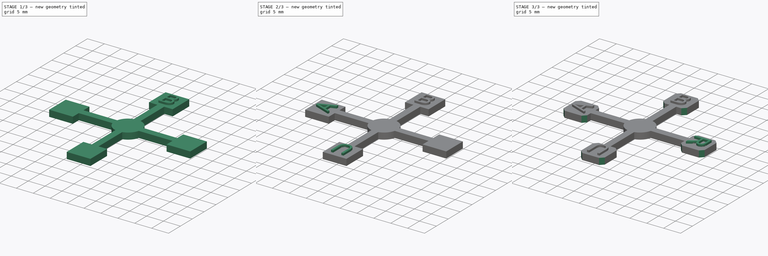
[diagram: build sequence overview — one tinted view per stage of 3, left to right]
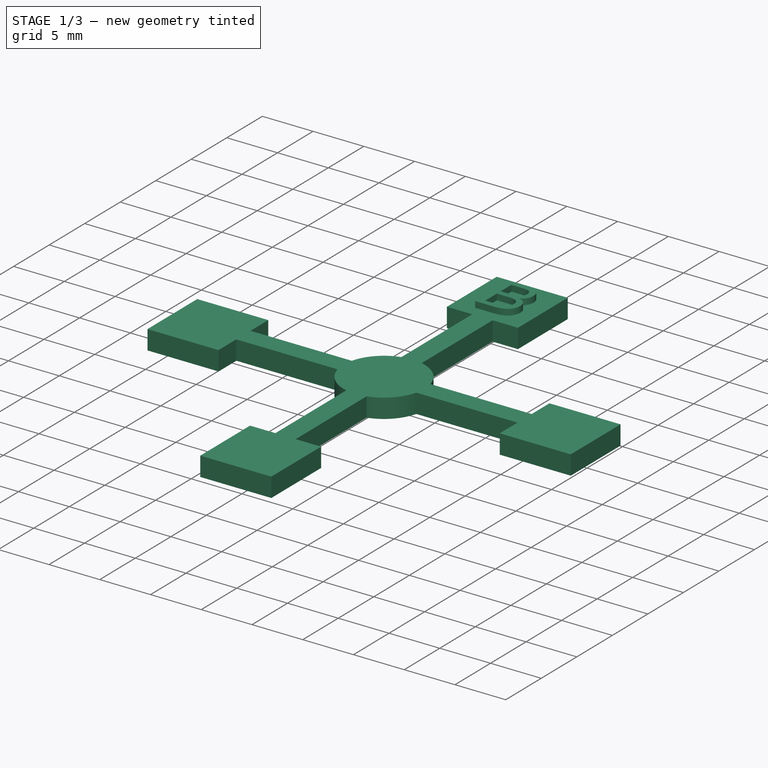
[diagram: stage 1 of 3 — iso view after this stage's code; geometry added in this stage tinted green]
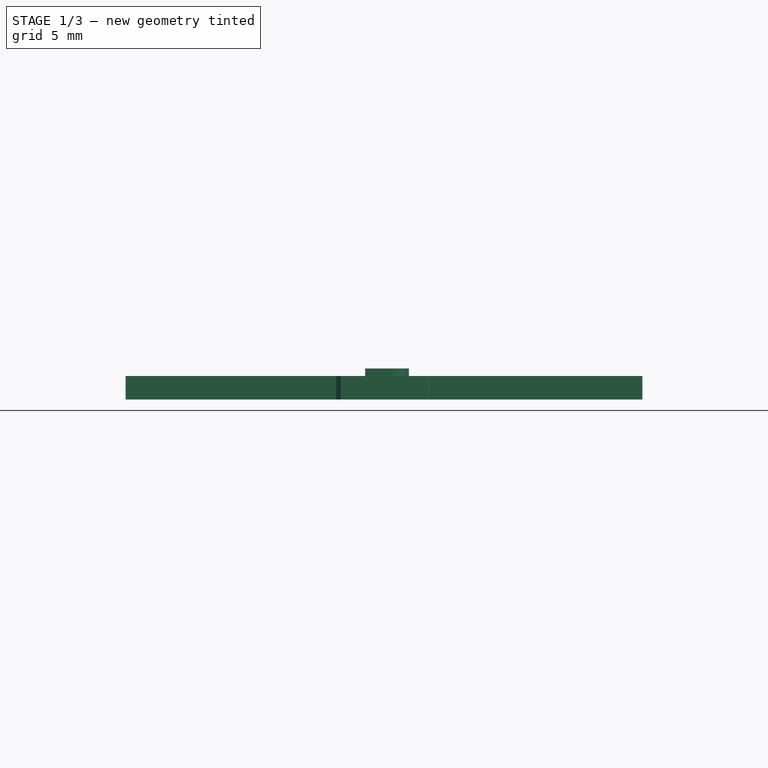
[diagram: stage 1 of 3 — front view after this stage's code; geometry added in this stage tinted green]
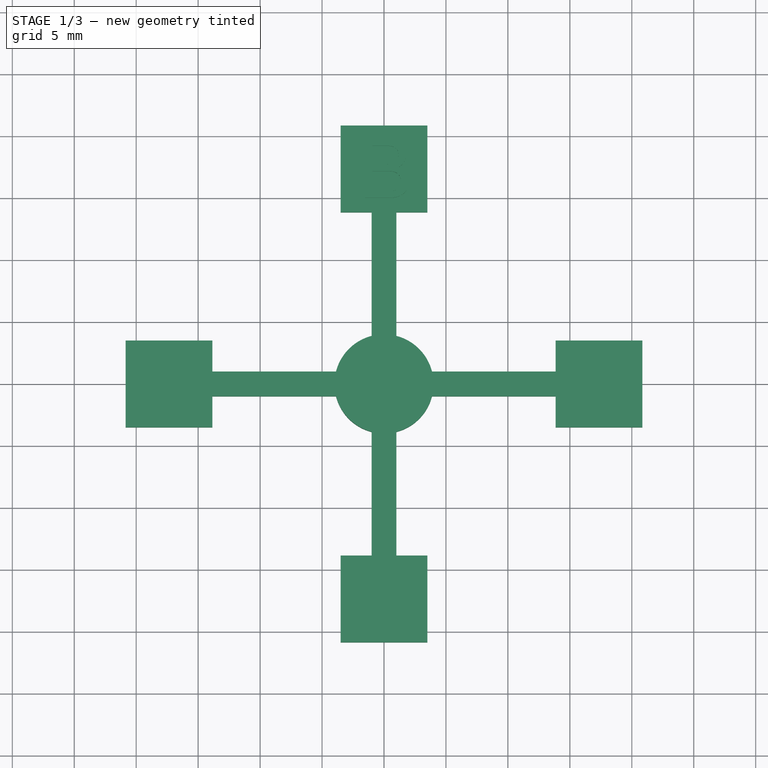
[diagram: stage 1 of 3 — top view after this stage's code; geometry added in this stage tinted green]
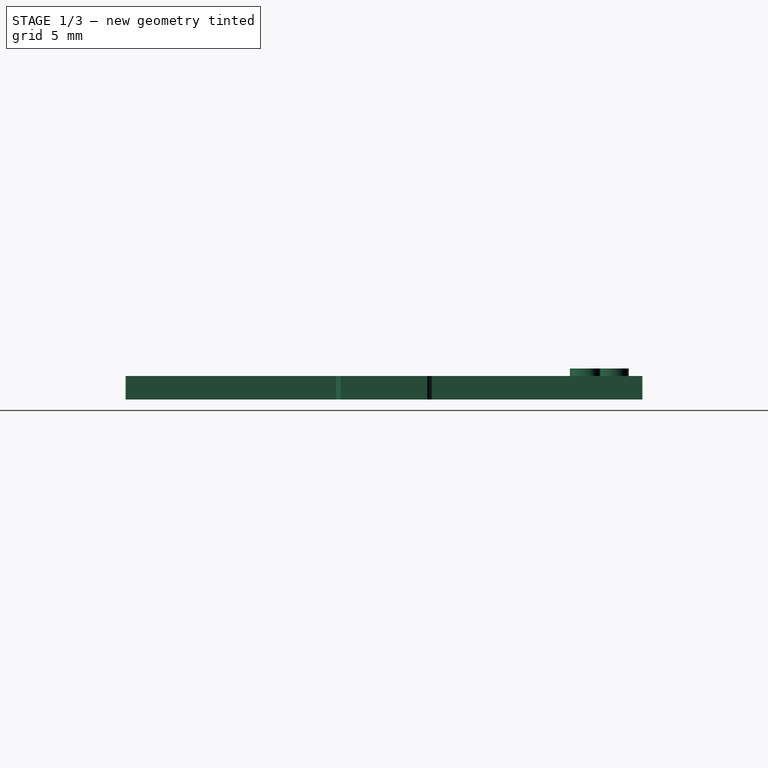
[diagram: stage 1 of 3 — right view after this stage's code; geometry added in this stage tinted green]
FCSTD DOCUMENT  (FreeCAD 0.19R24291 (Git))
Label: Baur
License: All rights reserved
LicenseURL: http://en.wikipedia.org/wiki/All_rights_reserved
objects: Sketcher::SketchObject×5, PartDesign::Pad×5, Part::Part2DObjectPython×4, PartDesign::Plane×1, PartDesign::Chamfer×1, PartDesign::Body×1
note: 23 computed .brp shape members not serialized (recipe doc carries the construction recipe); baked Part::Feature solids carry a one-line shape summary decoded from their .brp

FEATURE [Sketcher::SketchObject] Sketch
  FullyConstrained = true
  MapMode = 5
  Support = -> [XY_Plane]
  sketch-geometry (38):
    g0: LineSegment StartX=-1 StartY=13.853 StartZ=0 EndX=-1 EndY=3.87298 EndZ=0
    g1: LineSegment StartX=1 StartY=3.87298 StartZ=0 EndX=1 EndY=13.853 EndZ=0
    g2: LineSegment StartX=13.853 StartY=1 StartZ=0 EndX=3.87298 EndY=1 EndZ=0
    g3: LineSegment StartX=13.853 StartY=-1 StartZ=0 EndX=3.87298 EndY=-1 EndZ=0
    g4: LineSegment StartX=1 StartY=-13.853 StartZ=0 EndX=1 EndY=-3.87298 EndZ=0
    g5: LineSegment StartX=-1 StartY=-13.853 StartZ=0 EndX=-1 EndY=-3.87298 EndZ=0
    g6: LineSegment StartX=-13.853 StartY=1 StartZ=0 EndX=-3.87298 EndY=1 EndZ=0
    g7: LineSegment StartX=-13.853 StartY=-1 StartZ=0 EndX=-3.87298 EndY=-1 EndZ=0
    g8: ArcOfCircle CenterX=0 CenterY=0 CenterZ=0 NormalX=0 NormalY=0 NormalZ=1 AngleXU=0 Radius=4 StartAngle=3.39427 EndAngle=4.45971
    g9: ArcOfCircle CenterX=0 CenterY=0 CenterZ=0 NormalX=0 NormalY=0 NormalZ=1 AngleXU=0 Radius=4 StartAngle=4.96507 EndAngle=6.03051
    g10: ArcOfCircle CenterX=0 CenterY=0 CenterZ=0 NormalX=0 NormalY=0 NormalZ=1 AngleXU=0 Radius=4 StartAngle=0.25268 EndAngle=1.31812
    g11: ArcOfCircle CenterX=0 CenterY=0 CenterZ=0 NormalX=0 NormalY=0 NormalZ=1 AngleXU=0 Radius=4 StartAngle=1.82348 EndAngle=2.88891
    g12: GeomPoint X=3.5 Y=20.853 Z=0
    g13: GeomPoint X=-3.5 Y=20.853 Z=0
    g14: LineSegment StartX=-3.5 StartY=20.853 StartZ=0 EndX=-3.5 EndY=13.853 EndZ=0
    g15: LineSegment StartX=-3.5 StartY=13.853 StartZ=0 EndX=-1 EndY=13.853 EndZ=0
    g16: LineSegment StartX=3.5 StartY=13.853 StartZ=0 EndX=1 EndY=13.853 EndZ=0
    g17: LineSegment StartX=3.5 StartY=13.853 StartZ=0 EndX=3.5 EndY=20.853 EndZ=0
    g18: LineSegment StartX=-3.5 StartY=20.853 StartZ=0 EndX=3.5 EndY=20.853 EndZ=0
    g19: LineSegment StartX=13.853 StartY=3.5 StartZ=0 EndX=20.853 EndY=3.5 EndZ=0
    g20: LineSegment StartX=20.853 StartY=3.5 StartZ=0 EndX=20.853 EndY=-3.5 EndZ=0
    g21: LineSegment StartX=20.853 StartY=-3.5 StartZ=0 EndX=13.853 EndY=-3.5 EndZ=0
    g22: LineSegment StartX=13.853 StartY=-3.5 StartZ=0 EndX=13.853 EndY=-1 EndZ=0
    g23: LineSegment StartX=3.5 StartY=-13.853 StartZ=0 EndX=1 EndY=-13.853 EndZ=0
    g24: LineSegment StartX=-3.5 StartY=-13.853 StartZ=0 EndX=-3.5 EndY=-20.853 EndZ=0
    g25: LineSegment StartX=-3.5 StartY=-20.853 StartZ=0 EndX=3.5 EndY=-20.853 EndZ=0
    g26: LineSegment StartX=3.5 StartY=-20.853 StartZ=0 EndX=3.5 EndY=-13.853 EndZ=0
    g27: LineSegment StartX=-13.853 StartY=3.5 StartZ=0 EndX=-20.853 EndY=3.5 EndZ=0
    g28: LineSegment StartX=-20.853 StartY=3.5 StartZ=0 EndX=-20.853 EndY=-3.5 EndZ=0
    g29: LineSegment StartX=-20.853 StartY=-3.5 StartZ=0 EndX=-13.853 EndY=-3.5 EndZ=0
    g30: LineSegment StartX=-13.853 StartY=-3.5 StartZ=0 EndX=-13.853 EndY=-1 EndZ=0
    g31: LineSegment StartX=13.853 StartY=1 StartZ=0 EndX=13.853 EndY=3.5 EndZ=0
    g32: LineSegment StartX=-13.853 StartY=1 StartZ=0 EndX=-13.853 EndY=3.5 EndZ=0
    g33: LineSegment StartX=-1 StartY=-13.853 StartZ=0 EndX=-3.5 EndY=-13.853 EndZ=0
    g34: LineSegment StartX=13.853 StartY=1 StartZ=0 EndX=13.853 EndY=-1 EndZ=0
    g35: LineSegment StartX=1 StartY=-13.853 StartZ=0 EndX=-1 EndY=-13.853 EndZ=0
    g36: LineSegment StartX=-13.853 StartY=1 StartZ=0 EndX=-13.853 EndY=-1 EndZ=0
    g37: LineSegment StartX=-1 StartY=13.853 StartZ=0 EndX=1 EndY=13.853 EndZ=0
  constraints (103):
    c: Vertical(g0)
    c: Vertical(g1)
    c: Symmetric(g0,g1,g-2)
    c: Horizontal(g2)
    c: Horizontal(g3)
    c: Symmetric(g2,g3,g-1)
    c: Vertical(g4)
    c: Vertical(g5)
    c: Symmetric(g4,g5,g-2)
    c: Horizontal(g6)
    c: Horizontal(g7)
    c: Symmetric(g6,g7,g-1)
    c: Equal(g2,g4)
    c: Radius(g8) = 4
    c: PointOnObject(g3,g8)
    c: Coincident(g8,g7)
    c: Coincident(g11,g6)
    c: Coincident(g8,g5)
    c: PointOnObject(g9,g4)
    c: Coincident(g8,g9)
    c: Equal(g9,g10)
    c: PointOnObject(g9,g3)
    c: PointOnObject(g10,g2)
    c: Coincident(g9,g10)
    c: Equal(g10,g11)
    c: PointOnObject(g10,g1)
    c: Coincident(g10,g11)
    c: Coincident(g14,g13)
    c: Coincident(g15,g14)
    c: PointOnObject(g15,g0)
    c: Horizontal(g15)
    c: Coincident(g17,g16)
    c: Coincident(g17,g12)
    c: Horizontal(g16)
    c: DistanceX(g0,g1) = 2
    c: DistanceY(g0,g0) = 9.98
    c: Equal(g14,g17)
    c: Coincident(g11,g0)
    c: Coincident(g8,g-1)
    c: Coincident(g18,g14)
    c: Coincident(g18,g17)
    c: Equal(g2,g3)
    c: Equal(g4,g5)
    c: Equal(g5,g7)
    c: Equal(g7,g6)
    c: Equal(g6,g0)
    c: Coincident(g19,g20)
    c: Coincident(g20,g21)
    c: Coincident(g21,g22)
    c: Coincident(g31,g19)
    c: Horizontal(g19)
    c: Horizontal(g21)
    c: Vertical(g20)
    c: Coincident(g33,g24)
    c: Coincident(g24,g25)
    c: Coincident(g25,g26)
    c: Coincident(g26,g23)
    c: Horizontal(g25)
    c: Vertical(g24)
    c: Vertical(g26)
    c: Coincident(g27,g28)
    c: Coincident(g28,g29)
    c: Coincident(g29,g30)
    c: Coincident(g32,g27)
    c: Horizontal(g27)
    c: Horizontal(g29)
    c: Vertical(g28)
    c: Equal(g29,g28)
    c: Equal(g28,g24)
    c: Equal(g24,g25)
    c: Equal(g25,g21)
    c: Symmetric(g19,g21,g-1)
    c: Symmetric(g23,g33,g-2)
    c: Symmetric(g29,g27,g-1)
    c: Coincident(g22,g3)
    c: PointOnObject(g31,g2)
    c: Tangent(g22,g31)
    c: PointOnObject(g30,g7)
    c: Coincident(g32,g6)
    c: Tangent(g30,g32)
    c: PointOnObject(g23,g4)
    c: Coincident(g33,g5)
    c: Tangent(g23,g33)
    c: Coincident(g34,g2)
    c: Coincident(g34,g3)
    c: Coincident(g35,g4)
    c: Coincident(g35,g5)
    c: Coincident(g36,g6)
    c: Coincident(g36,g7)
    c: Coincident(g37,g0)
    c: Coincident(g37,g1)
    c: Horizontal(g37)
    c: Equal(g37,g34)
    c: Equal(g34,g36)
    c: Equal(g36,g35)
    c: Equal(g18,g20)
    c: Equal(g20,g25)
    c: Vertical(g17)
    c: Vertical(g14)
    c: Equal(g18,g14)
    c: DistanceX(g18,g18) = 7
    c: Coincident(g16,g1)
    c: Symmetric(g17,g14,g-2)
FEATURE [Part::Part2DObjectPython] ShapeString  # Draft 2D object (typed FeaturePython)
  FontFile = <userpath>/Fonts/arial.ttf
  Placement = pos=(-2.5,15,1.9) rot=(0,0,1;0rad)
  Size = 5
  String = B
  Tracking = 0
FEATURE [Part::Part2DObjectPython] ShapeString001  # Draft 2D object (typed FeaturePython)
  FontFile = <userpath>/Fonts/arial.ttf
  Placement = pos=(-15,-2.25,0) rot=(0,0,1;1.5708rad)
  Size = 5
  String = A
  Tracking = 0
FEATURE [Part::Part2DObjectPython] ShapeString002  # Draft 2D object (typed FeaturePython)
  FontFile = <userpath>/Fonts/arial.ttf
  Placement = pos=(2.35,-15,0) rot=(0,0,1;3.14159rad)
  Size = 5
  String = U
  Tracking = 0
FEATURE [Part::Part2DObjectPython] ShapeString003  # Draft 2D object (typed FeaturePython)
  FontFile = <userpath>/Fonts/arial.ttf
  Placement = pos=(15,2.55,0) rot=(0,0,-1;1.5708rad)
  Size = 5
  String = R
  Tracking = 0
FEATURE [PartDesign::Pad] Pad
  Direction = (1,1,1)
  Length = 1.9
  Length2 = 100
  Profile = -> Sketch
  Type = 0
FEATURE [PartDesign::Plane] DatumPlane
  AttachmentOffset = pos=(0,0,1.9) rot=(0,0,1;0rad)
  Length = 60
  MapMode = 5
  Placement = pos=(0,0,1.9) rot=(0,0,1;0rad)
  ResizeMode = 0
  Support = -> [XY_Plane]
  Width = 60
FEATURE [Sketcher::SketchObject] Sketch006  label="B_"
  FullyConstrained = false
  MapMode = 5
  Placement = pos=(0,0,1.9) rot=(0,0,1;0rad)
  Support = -> [DatumPlane]
  sketch-geometry (33):
    g0: LineSegment StartX=-1.52229 StartY=15 StartZ=0 EndX=-1.52229 EndY=19.7558 EndZ=0
    g1: LineSegment StartX=0.259023 StartY=15 StartZ=0 EndX=-1.52229 EndY=15 EndZ=0
    g2: BSplineCurve PolesCount=3 KnotsCount=2 Degree=2 IsPeriodic=0
    g3: BSplineCurve PolesCount=3 KnotsCount=2 Degree=2 IsPeriodic=0
    g4: BSplineCurve PolesCount=3 KnotsCount=2 Degree=2 IsPeriodic=0
    g5: BSplineCurve PolesCount=3 KnotsCount=2 Degree=2 IsPeriodic=0
    g6: BSplineCurve PolesCount=3 KnotsCount=2 Degree=2 IsPeriodic=0
    g7: BSplineCurve PolesCount=3 KnotsCount=2 Degree=2 IsPeriodic=0
    g8: BSplineCurve PolesCount=3 KnotsCount=2 Degree=2 IsPeriodic=0
    g9: BSplineCurve PolesCount=3 KnotsCount=2 Degree=2 IsPeriodic=0
    g10: BSplineCurve PolesCount=3 KnotsCount=2 Degree=2 IsPeriodic=0
    g11: BSplineCurve PolesCount=3 KnotsCount=2 Degree=2 IsPeriodic=0
    g12: BSplineCurve PolesCount=3 KnotsCount=2 Degree=2 IsPeriodic=0
    g13: LineSegment StartX=-1.52229 StartY=19.7558 StartZ=0 EndX=0.229299 EndY=19.7558 EndZ=0
    g14: LineSegment StartX=-0.904459 StartY=15.5435 StartZ=0 EndX=0.259023 EndY=15.5435 EndZ=0
    g15: LineSegment StartX=-0.904459 StartY=17.1741 StartZ=0 EndX=-0.904459 EndY=15.5435 EndZ=0
    g16: LineSegment StartX=0.176221 StartY=17.1741 StartZ=0 EndX=-0.904459 EndY=17.1741 EndZ=0
    g17: BSplineCurve PolesCount=3 KnotsCount=2 Degree=2 IsPeriodic=0
    g18: BSplineCurve PolesCount=3 KnotsCount=2 Degree=2 IsPeriodic=0
    g19: BSplineCurve PolesCount=3 KnotsCount=2 Degree=2 IsPeriodic=0
    g20: BSplineCurve PolesCount=3 KnotsCount=2 Degree=2 IsPeriodic=0
    g21: BSplineCurve PolesCount=3 KnotsCount=2 Degree=2 IsPeriodic=0
    g22: BSplineCurve PolesCount=3 KnotsCount=2 Degree=2 IsPeriodic=0
    g23: BSplineCurve PolesCount=3 KnotsCount=2 Degree=2 IsPeriodic=0
    g24: LineSegment StartX=-0.904459 StartY=17.7176 StartZ=0 EndX=0.106157 EndY=17.7176 EndZ=0
    g25: LineSegment StartX=-0.904459 StartY=19.2123 StartZ=0 EndX=-0.904459 EndY=17.7176 EndZ=0
    g26: LineSegment StartX=0.029724 StartY=19.2123 StartZ=0 EndX=-0.904459 EndY=19.2123 EndZ=0
    g27: BSplineCurve PolesCount=3 KnotsCount=2 Degree=2 IsPeriodic=0
    g28: BSplineCurve PolesCount=3 KnotsCount=2 Degree=2 IsPeriodic=0
    g29: BSplineCurve PolesCount=3 KnotsCount=2 Degree=2 IsPeriodic=0
    g30: BSplineCurve PolesCount=3 KnotsCount=2 Degree=2 IsPeriodic=0
    g31: BSplineCurve PolesCount=3 KnotsCount=2 Degree=2 IsPeriodic=0
    g32: BSplineCurve PolesCount=3 KnotsCount=2 Degree=2 IsPeriodic=0
  constraints (42):
    c: Vertical(g0)
    c: Coincident(g0,g1)
    c: Horizontal(g1)
    c: Coincident(g1,g2)
    c: Coincident(g2,g3)
    c: Coincident(g3,g4)
    c: Coincident(g4,g5)
    c: Coincident(g5,g6)
    c: Coincident(g6,g7)
    c: Coincident(g7,g8)
    c: Coincident(g8,g9)
    c: Coincident(g9,g10)
    c: Coincident(g10,g11)
    c: Coincident(g11,g12)
    c: Coincident(g12,g13)
    c: Horizontal(g13)
    c: Coincident(g13,g0)
    c: Horizontal(g14)
    c: Coincident(g14,g15)
    c: Vertical(g15)
    c: Coincident(g15,g16)
    c: Horizontal(g16)
    c: Coincident(g16,g17)
    c: Coincident(g17,g18)
    c: Coincident(g18,g19)
    c: Coincident(g19,g20)
    c: Coincident(g20,g21)
    c: Coincident(g21,g22)
    c: Coincident(g22,g23)
    c: Coincident(g23,g14)
    c: Horizontal(g24)
    c: Coincident(g24,g25)
    c: Vertical(g25)
    c: Coincident(g25,g26)
    c: Horizontal(g26)
    c: Coincident(g26,g27)
    c: Coincident(g27,g28)
    c: Coincident(g28,g29)
    c: Coincident(g29,g30)
    c: Coincident(g30,g31)
    c: Coincident(g31,g32)
    c: Coincident(g32,g24)
FEATURE [Sketcher::SketchObject] Sketch007
  FullyConstrained = false
  MapMode = 5
  Placement = pos=(0,0,1.9) rot=(0,0,1;0rad)
  Support = -> [DatumPlane]
  sketch-geometry (13):
    g0: LineSegment StartX=-15 StartY=-2.26062 StartZ=0 EndX=-19.7558 EndY=-0.466561 EndZ=0
    g1: LineSegment StartX=-15 StartY=-1.60244 StartZ=0 EndX=-15 EndY=-2.26062 EndZ=0
    g2: LineSegment StartX=-16.4947 StartY=-1.09076 StartZ=0 EndX=-15 EndY=-1.60244 EndZ=0
    g3: LineSegment StartX=-16.4947 StartY=0.862527 StartZ=0 EndX=-16.4947 EndY=-1.09076 EndZ=0
    g4: LineSegment StartX=-15 StartY=1.40605 StartZ=0 EndX=-16.4947 EndY=0.862527 EndZ=0
    g5: LineSegment StartX=-15 StartY=2.11093 StartZ=0 EndX=-15 EndY=1.40605 EndZ=0
    g6: LineSegment StartX=-19.7558 StartY=0.200106 StartZ=0 EndX=-15 EndY=2.11093 EndZ=0
    g7: LineSegment StartX=-19.7558 StartY=-0.466561 StartZ=0 EndX=-19.7558 EndY=0.200106 EndZ=0
    g8: LineSegment StartX=-17.0382 StartY=-0.91242 StartZ=0 EndX=-17.0382 EndY=0.671444 EndZ=0
    g9: LineSegment StartX=-18.3079 StartY=-0.39862 StartZ=0 EndX=-17.0382 EndY=-0.91242 EndZ=0
    g10: BSplineCurve PolesCount=3 KnotsCount=2 Degree=2 IsPeriodic=0
    g11: BSplineCurve PolesCount=3 KnotsCount=2 Degree=2 IsPeriodic=0
    g12: LineSegment StartX=-17.0382 StartY=0.671444 StartZ=0 EndX=-18.2229 EndY=0.183121 EndZ=0
  constraints (18):
    c: Coincident(g0,g1)
    c: Vertical(g1)
    c: Coincident(g1,g2)
    c: Coincident(g2,g3)
    c: Vertical(g3)
    c: Coincident(g3,g4)
    c: Coincident(g4,g5)
    c: Vertical(g5)
    c: Coincident(g5,g6)
    c: Coincident(g6,g7)
    c: Vertical(g7)
    c: Coincident(g7,g0)
    c: Vertical(g8)
    c: Coincident(g8,g9)
    c: Coincident(g9,g10)
    c: Coincident(g10,g11)
    c: Coincident(g11,g12)
    c: Coincident(g12,g8)
FEATURE [Sketcher::SketchObject] Sketch008
  FullyConstrained = false
  MapMode = 5
  Placement = pos=(0,0,1.9) rot=(0,0,1;0rad)
  Support = -> [DatumPlane]
  sketch-geometry (17):
    g0: LineSegment StartX=-1.21688 StartY=-19.7558 StartZ=0 EndX=-1.83471 EndY=-19.7558 EndZ=0
    g1: LineSegment StartX=-1.21688 StartY=-16.9597 StartZ=0 EndX=-1.21688 EndY=-19.7558 EndZ=0
    g2: BSplineCurve PolesCount=3 KnotsCount=2 Degree=2 IsPeriodic=0
    g3: BSplineCurve PolesCount=3 KnotsCount=2 Degree=2 IsPeriodic=0
    g4: BSplineCurve PolesCount=3 KnotsCount=2 Degree=2 IsPeriodic=0
    g5: BSplineCurve PolesCount=3 KnotsCount=2 Degree=2 IsPeriodic=0
    g6: BSplineCurve PolesCount=3 KnotsCount=2 Degree=2 IsPeriodic=0
    g7: LineSegment StartX=1.21837 StartY=-19.7558 StartZ=0 EndX=1.21837 EndY=-16.9597 EndZ=0
    g8: LineSegment StartX=1.8362 StartY=-19.7558 StartZ=0 EndX=1.21837 EndY=-19.7558 EndZ=0
    g9: LineSegment StartX=1.8362 StartY=-16.9766 StartZ=0 EndX=1.8362 EndY=-19.7558 EndZ=0
    g10: BSplineCurve PolesCount=3 KnotsCount=2 Degree=2 IsPeriodic=0
    g11: BSplineCurve PolesCount=3 KnotsCount=2 Degree=2 IsPeriodic=0
    g12: BSplineCurve PolesCount=3 KnotsCount=2 Degree=2 IsPeriodic=0
    g13: BSplineCurve PolesCount=3 KnotsCount=2 Degree=2 IsPeriodic=0
    g14: BSplineCurve PolesCount=3 KnotsCount=2 Degree=2 IsPeriodic=0
    g15: BSplineCurve PolesCount=3 KnotsCount=2 Degree=2 IsPeriodic=0
    g16: LineSegment StartX=-1.83471 StartY=-19.7558 StartZ=0 EndX=-1.83471 EndY=-16.9766 EndZ=0
  constraints (19):
    c: Horizontal(g0)
    c: Coincident(g0,g1)
    c: Coincident(g1,g2)
    c: Coincident(g2,g3)
    c: Coincident(g3,g4)
    c: Coincident(g4,g5)
    c: Coincident(g5,g6)
    c: Coincident(g6,g7)
    c: Coincident(g7,g8)
    c: Horizontal(g8)
    c: Coincident(g8,g9)
    c: Coincident(g9,g10)
    c: Coincident(g10,g11)
    c: Coincident(g11,g12)
    c: Coincident(g12,g13)
    c: Coincident(g13,g14)
    c: Coincident(g14,g15)
    c: Coincident(g15,g16)
    c: Coincident(g16,g0)
FEATURE [Sketcher::SketchObject] Sketch009
  FullyConstrained = false
  MapMode = 5
  Placement = pos=(0,0,1.9) rot=(0,0,1;0rad)
  Support = -> [DatumPlane]
  sketch-geometry (27):
    g0: LineSegment StartX=15 StartY=2.0362 StartZ=0 EndX=19.7558 EndY=2.0362 EndZ=0
    g1: LineSegment StartX=15 StartY=1.41837 StartZ=0 EndX=15 EndY=2.0362 EndZ=0
    g2: LineSegment StartX=17.1741 StartY=1.41837 StartZ=0 EndX=15 EndY=1.41837 EndZ=0
    g3: LineSegment StartX=17.1741 StartY=0.702866 StartZ=0 EndX=17.1741 EndY=1.41837 EndZ=0
    g4: BSplineCurve PolesCount=3 KnotsCount=2 Degree=2 IsPeriodic=0
    g5: BSplineCurve PolesCount=3 KnotsCount=2 Degree=2 IsPeriodic=0
    g6: BSplineCurve PolesCount=3 KnotsCount=2 Degree=2 IsPeriodic=0
    g7: BSplineCurve PolesCount=3 KnotsCount=2 Degree=2 IsPeriodic=0
    g8: LineSegment StartX=15 StartY=-1.30138 StartZ=0 EndX=15.9936 EndY=-0.683546 EndZ=0
    g9: LineSegment StartX=15 StartY=-2.07845 StartZ=0 EndX=15 EndY=-1.30138 EndZ=0
    g10: LineSegment StartX=16.3015 StartY=-1.26529 StartZ=0 EndX=15 EndY=-2.07845 EndZ=0
    g11: BSplineCurve PolesCount=3 KnotsCount=2 Degree=2 IsPeriodic=0
    g12: BSplineCurve PolesCount=3 KnotsCount=2 Degree=2 IsPeriodic=0
    g13: BSplineCurve PolesCount=3 KnotsCount=2 Degree=2 IsPeriodic=0
    g14: BSplineCurve PolesCount=3 KnotsCount=2 Degree=2 IsPeriodic=0
    g15: BSplineCurve PolesCount=3 KnotsCount=2 Degree=2 IsPeriodic=0
    g16: BSplineCurve PolesCount=3 KnotsCount=2 Degree=2 IsPeriodic=0
    g17: BSplineCurve PolesCount=3 KnotsCount=2 Degree=2 IsPeriodic=0
    g18: LineSegment StartX=19.7558 StartY=2.0362 StartZ=0 EndX=19.7558 EndY=-0.0338641 EndZ=0
    g19: LineSegment StartX=17.7176 StartY=1.41837 StartZ=0 EndX=17.7176 EndY=0.0914013 EndZ=0
    g20: LineSegment StartX=19.2123 StartY=1.41837 StartZ=0 EndX=17.7176 EndY=1.41837 EndZ=0
    g21: LineSegment StartX=19.2123 StartY=-0.0593418 StartZ=0 EndX=19.2123 EndY=1.41837 EndZ=0
    g22: BSplineCurve PolesCount=3 KnotsCount=2 Degree=2 IsPeriodic=0
    g23: BSplineCurve PolesCount=3 KnotsCount=2 Degree=2 IsPeriodic=0
    g24: BSplineCurve PolesCount=3 KnotsCount=2 Degree=2 IsPeriodic=0
    g25: BSplineCurve PolesCount=3 KnotsCount=2 Degree=2 IsPeriodic=0
    g26: BSplineCurve PolesCount=3 KnotsCount=2 Degree=2 IsPeriodic=0
  constraints (33):
    c: Coincident(g0,g1)
    c: Vertical(g1)
    c: Coincident(g1,g2)
    c: Coincident(g2,g3)
    c: Vertical(g3)
    c: Coincident(g3,g4)
    c: Coincident(g4,g5)
    c: Coincident(g5,g6)
    c: Coincident(g6,g7)
    c: Coincident(g7,g8)
    c: Coincident(g8,g9)
    c: Vertical(g9)
    c: Coincident(g9,g10)
    c: Coincident(g10,g11)
    c: Coincident(g11,g12)
    c: Coincident(g12,g13)
    c: Coincident(g13,g14)
    c: Coincident(g14,g15)
    c: Coincident(g15,g16)
    c: Coincident(g16,g17)
    c: Coincident(g17,g18)
    c: Vertical(g18)
    c: Coincident(g18,g0)
    c: Vertical(g19)
    c: Coincident(g19,g20)
    c: Coincident(g20,g21)
    c: Vertical(g21)
    c: Coincident(g21,g22)
    c: Coincident(g22,g23)
    c: Coincident(g23,g24)
    c: Coincident(g24,g25)
    c: Coincident(g25,g26)
    c: Coincident(g26,g19)
FEATURE [PartDesign::Pad] Pad001
  BaseFeature = -> Pad
  Direction = (1,1,1)
  Length = 0.6
  Length2 = 100
  Profile = -> Sketch006
  Type = 0
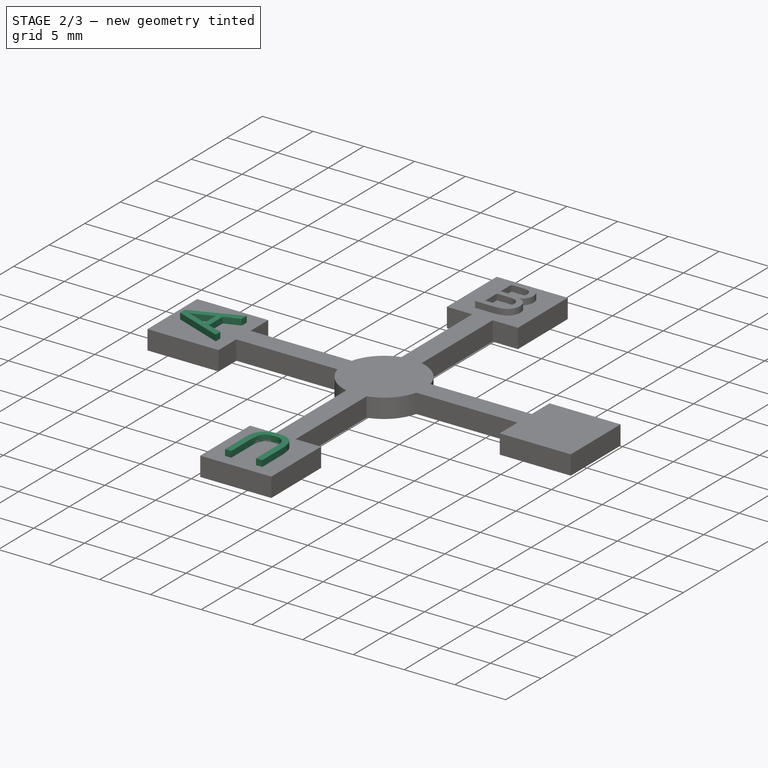
[diagram: stage 2 of 3 — iso view after this stage's code; geometry added in this stage tinted green]
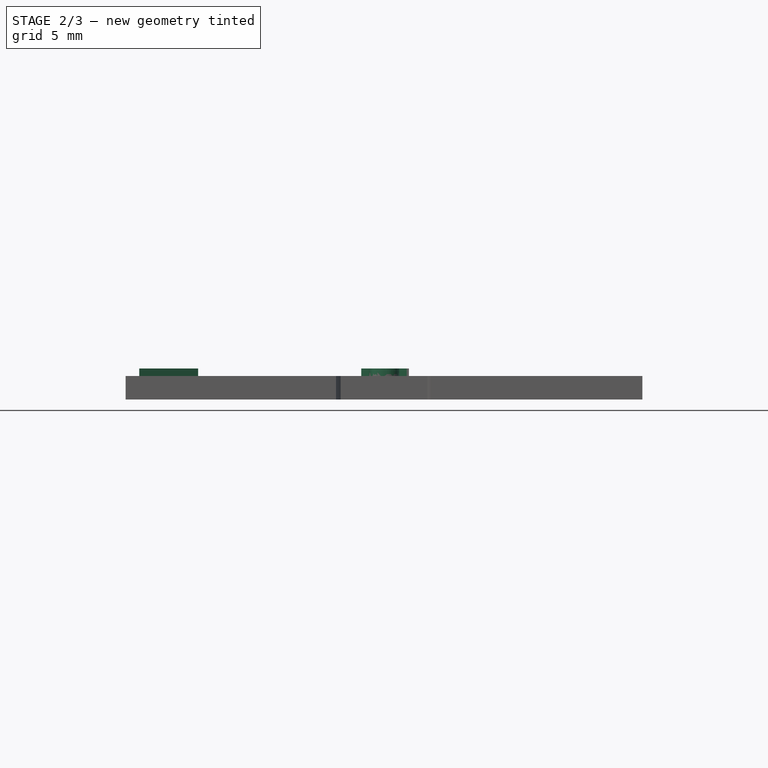
[diagram: stage 2 of 3 — front view after this stage's code; geometry added in this stage tinted green]
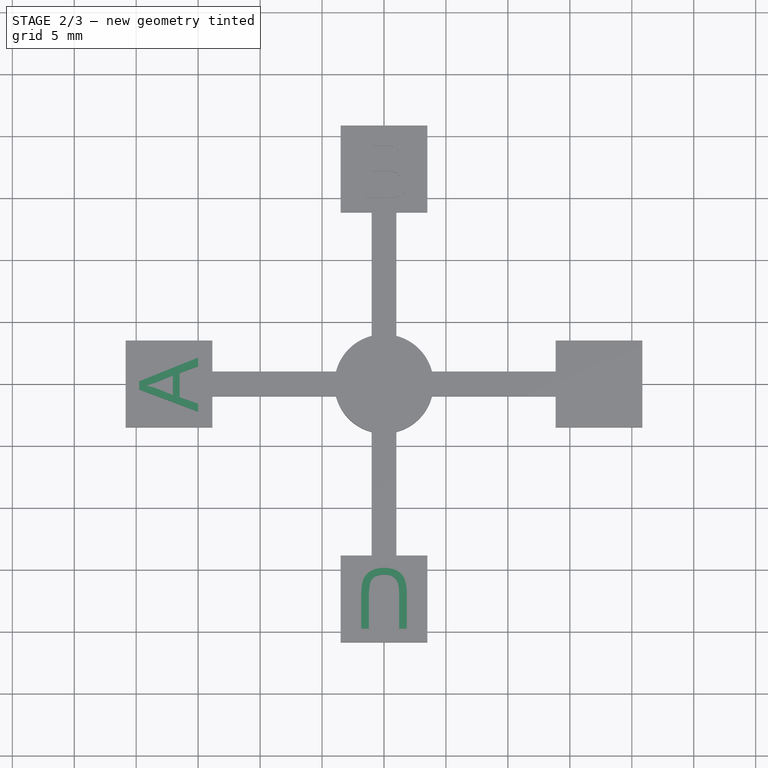
[diagram: stage 2 of 3 — top view after this stage's code; geometry added in this stage tinted green]
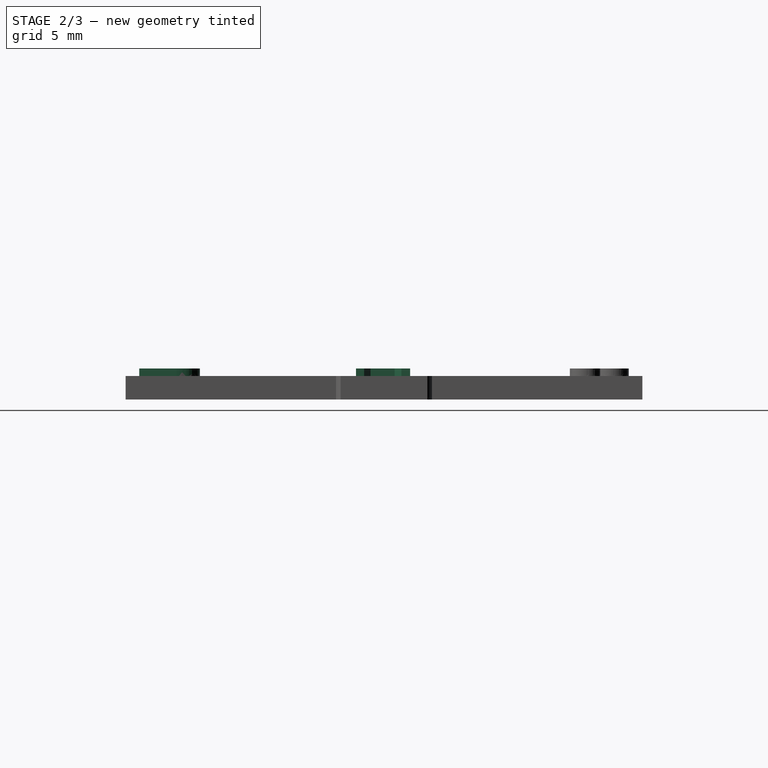
[diagram: stage 2 of 3 — right view after this stage's code; geometry added in this stage tinted green]
FEATURE [PartDesign::Pad] Pad002
  BaseFeature = -> Pad001
  Direction = (1,1,1)
  Length = 0.6
  Length2 = 100
  Profile = -> Sketch007
  Type = 0
FEATURE [PartDesign::Pad] Pad003
  BaseFeature = -> Pad002
  Direction = (1,1,1)
  Length = 0.6
  Length2 = 100
  Profile = -> Sketch008
  Type = 0
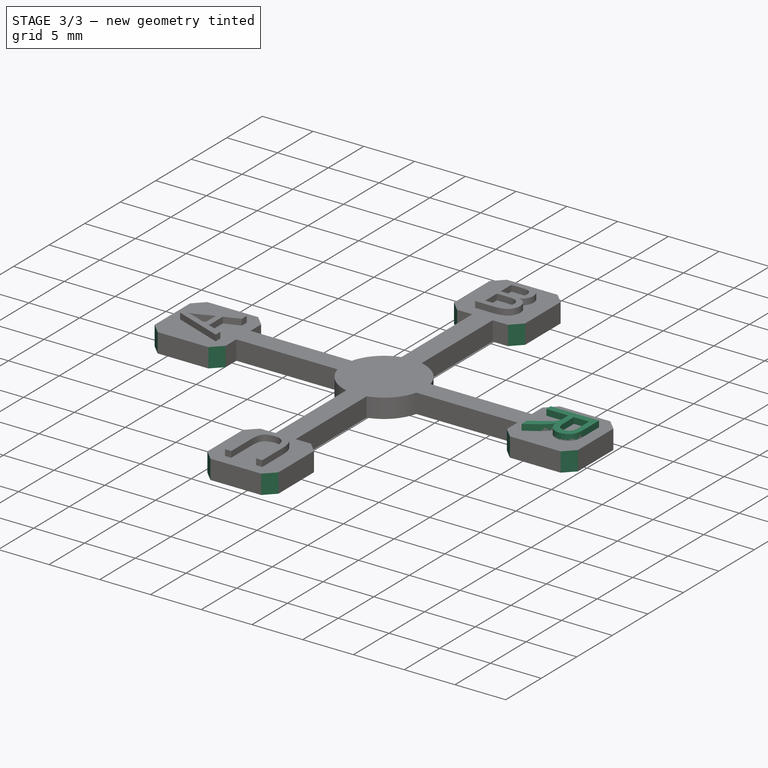
[diagram: stage 3 of 3 — iso view after this stage's code; geometry added in this stage tinted green]
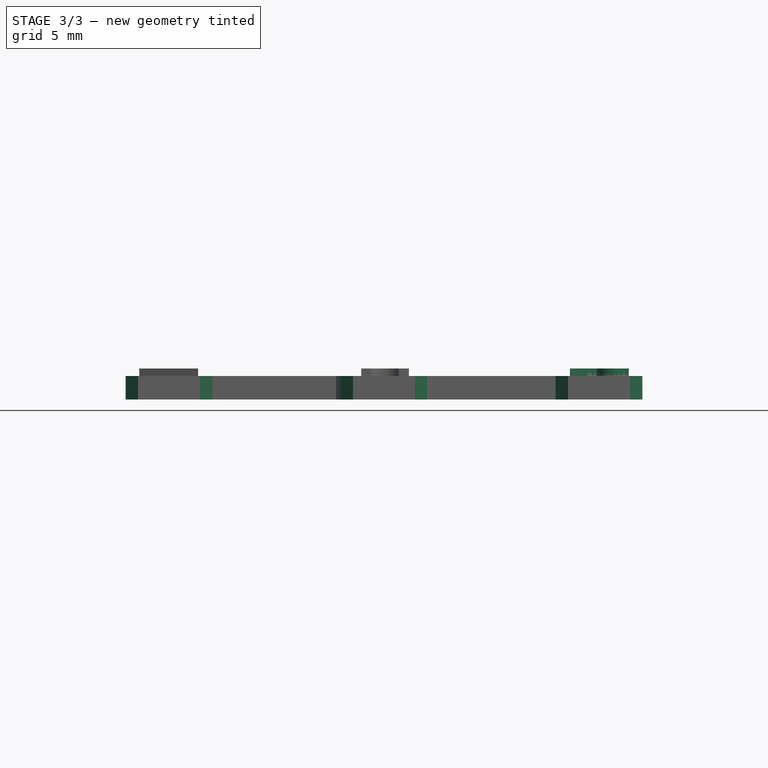
[diagram: stage 3 of 3 — front view after this stage's code; geometry added in this stage tinted green]
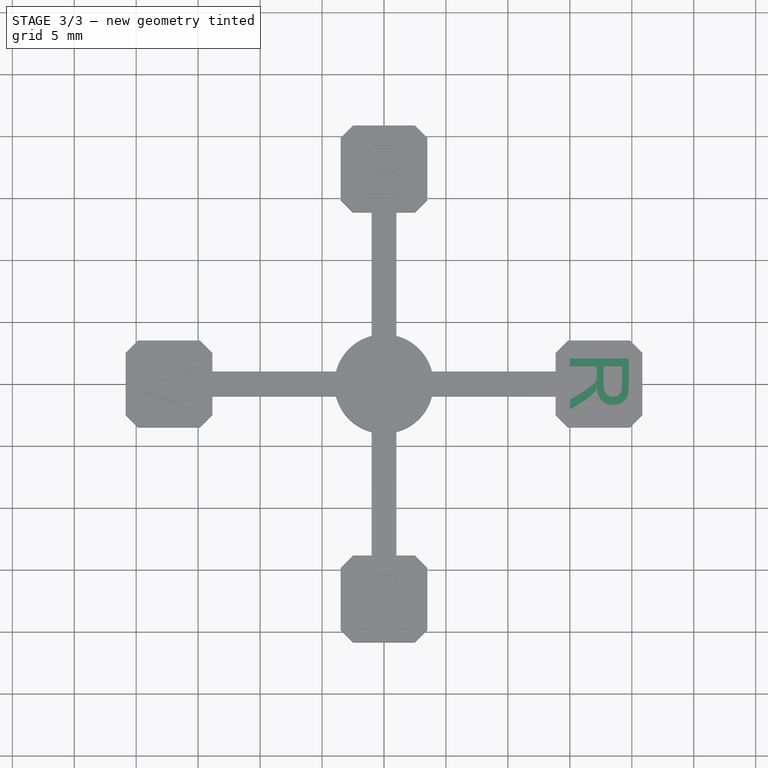
[diagram: stage 3 of 3 — top view after this stage's code; geometry added in this stage tinted green]
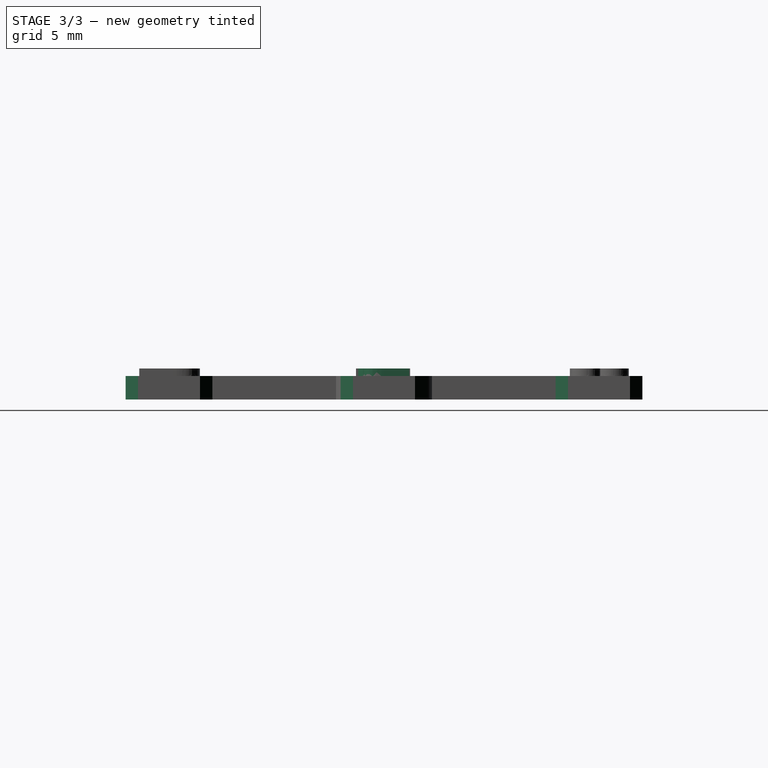
[diagram: stage 3 of 3 — right view after this stage's code; geometry added in this stage tinted green]
FEATURE [PartDesign::Pad] Pad004
  BaseFeature = -> Pad003
  Direction = (1,1,1)
  Length = 0.6
  Length2 = 100
  Profile = -> Sketch009
  Type = 0
FEATURE [PartDesign::Chamfer] Chamfer
  Angle = 45
  Base = -> Pad004 [Edge141,Edge140,Edge148,Edge149,Edge147,Edge142,Edge127,Edge5,Edge134,Edge133,Edge131,Edge2,Edge139,Edge132,Edge1,Edge150]
  BaseFeature = -> Pad004
  ChamferType = 0
  FlipDirection = false
  Size = 1
  Size2 = 1
  SupportTransform = false
FEATURE [PartDesign::Body] Body
  Group = -> [Sketch,Pad,DatumPlane,Sketch006,Sketch007,Sketch008,Sketch009,Pad001,Pad002,Pad003,Pad004,Chamfer]
  Origin = -> Origin
  Tip = -> Chamfer
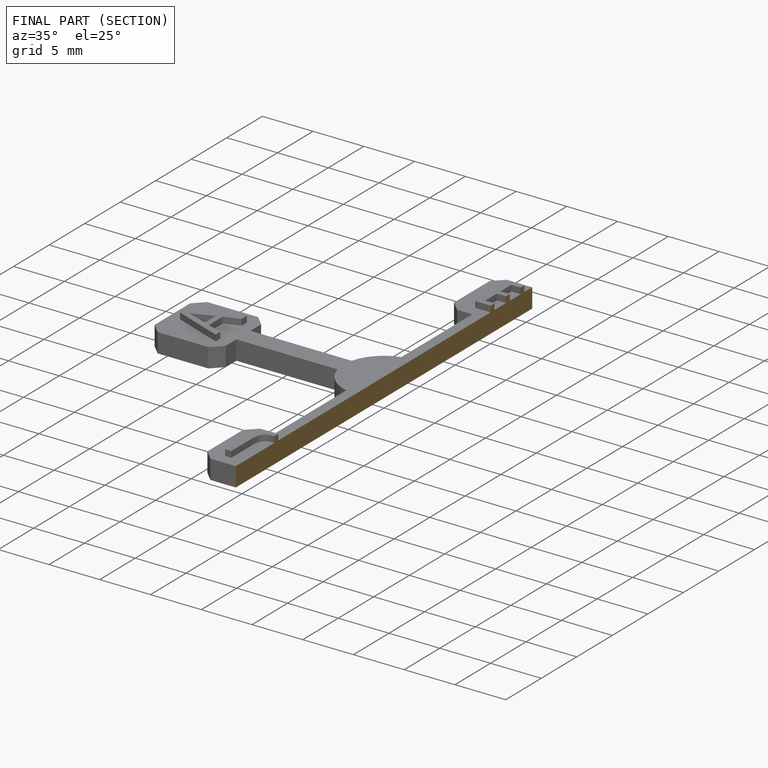
[diagram: finished part — half-section view (interior)]
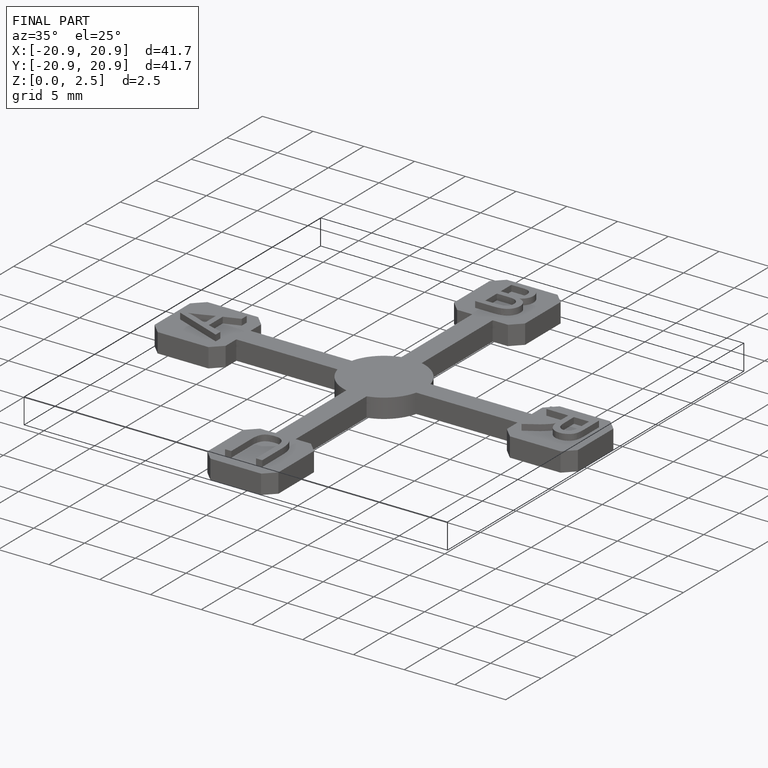
[diagram: finished part — iso view with bounding-box wireframe]
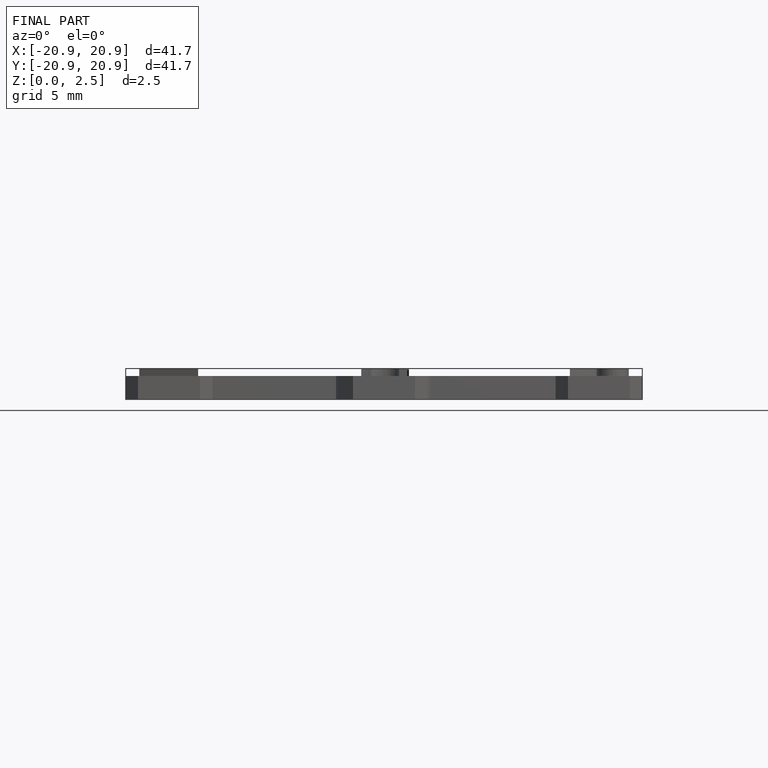
[diagram: finished part — front view with bounding-box wireframe]
